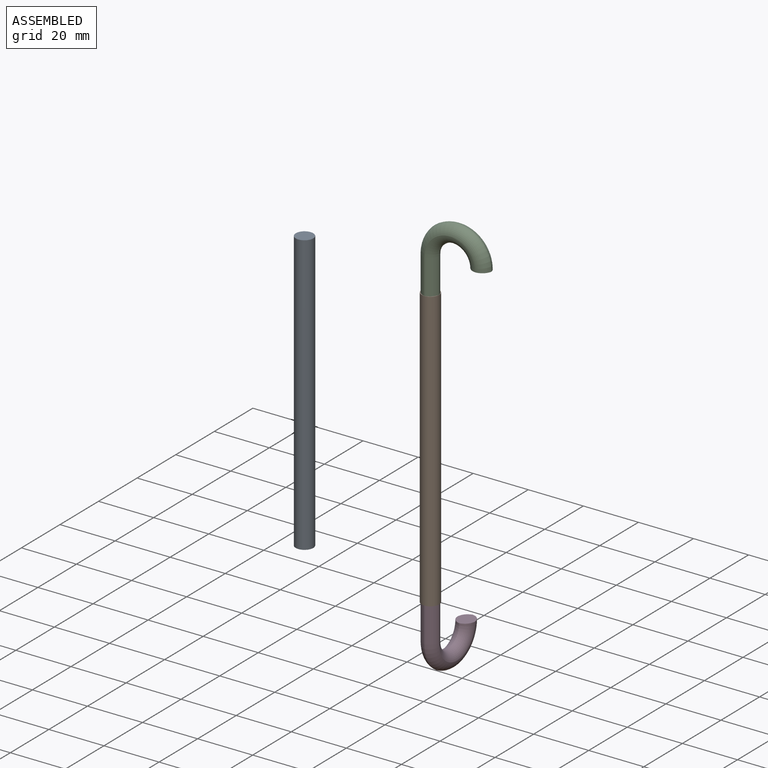
[diagram: assembled view]
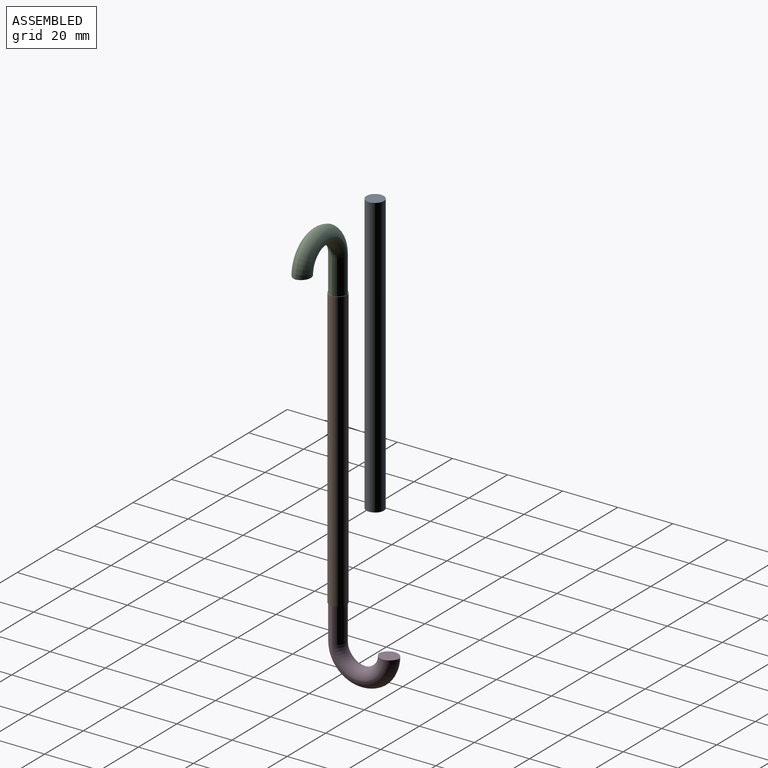
[diagram: assembled view, second angle]
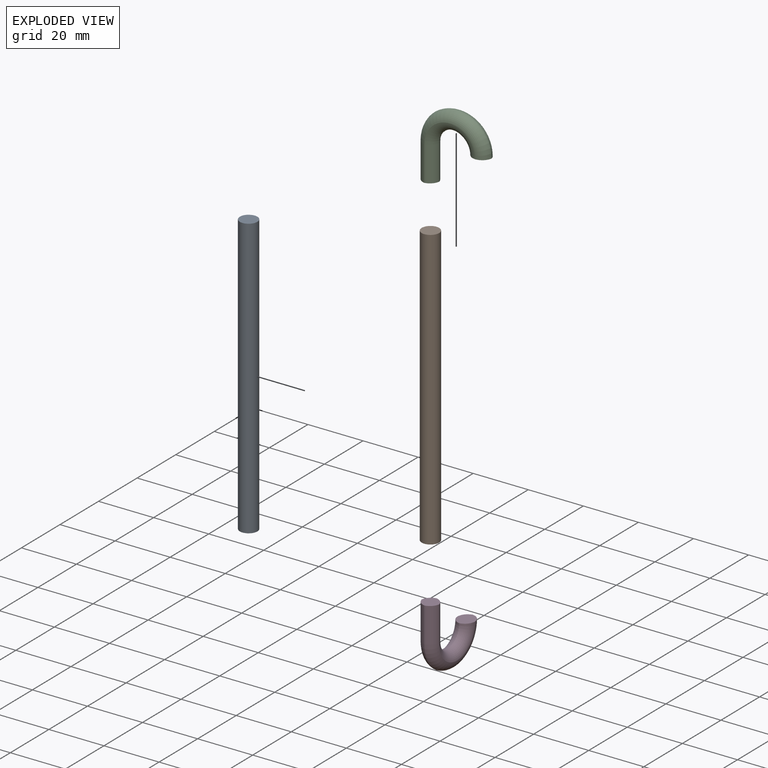
[diagram: exploded view]
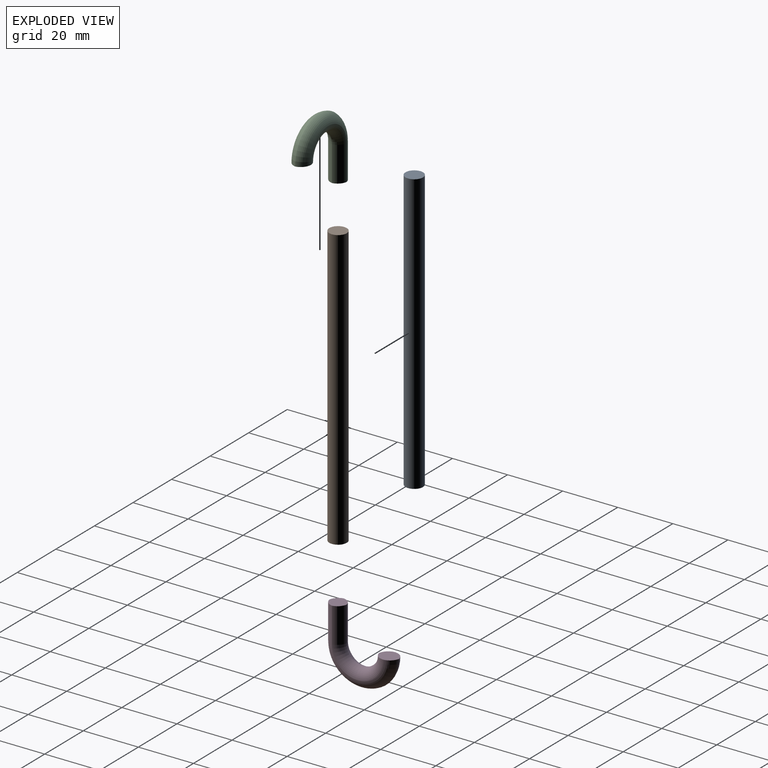
[diagram: exploded view, second angle]
ASSEMBLY  parts=3 mates=2
PART A: 3 faces, bbox 6.4x6.4x101.6 mm
  f0: cylinder r=3.17mm len=101.6mm, axis (0,0,-1), area 2026.8mm2, adj f1,f2
  f1: plane 6.35x6.35mm, normal (0,0,1), area 31.7mm2, adj f0
  f2: plane 6.35x6.35mm, normal (0,0,-1), area 31.7mm2, adj f0
PART B: 10 faces, bbox 27.5x26.4x6.4 mm
  f0: plane 6.24x6.24mm, normal (0,-1,0), area 28mm2, adj f2,f3,f5,f6
  f1: plane 7.23x6.35mm, normal (0,-1,0), area 34.2mm2, adj f4,f7,f8,f9
  f2: cylinder r=3.81mm len=12.7mm, axis (0,1,0), area 59.8mm2, adj f0,f3,f4,f5
  f3: cylinder r=3.81mm len=12.7mm, axis (0,-1,0), area 59.8mm2, adj f0,f2,f6,f7
  f4: torus R=8.89mm, axis (0,0,1), area 176.3mm2, adj f1,f2,f7,f8
  f5: cylinder r=3.81mm len=12.7mm, axis (0,-1,0), area 59.8mm2, adj f0,f2,f6,f8
  f6: cylinder r=3.81mm len=12.7mm, axis (0,1,0), area 59.8mm2, adj f0,f3,f5,f9
  f7: torus R=9.66mm, axis (0,0,1), area 112.7mm2, adj f1,f3,f4,f9
  f8: torus R=8.89mm, axis (0,0,1), area 176.3mm2, adj f1,f4,f5,f9
  f9: torus R=9.66mm, axis (0,0,1), area 112.7mm2, adj f1,f6,f7,f8
PART C: same geometry as B
PLACE A t=(-33.84,14.81,-6.64)mm
PLACE B rot(axis=(1,0,0),90deg) t=(0.78,17.98,128.24)mm
PLACE C rot(axis=(-0.58,-0.58,0.58),120deg) t=(-30.66,49.42,-39.92)mm
MATE fastened C.f0 <-> A.f0  axis (0,0,1) through (-33.84,14.81,-6.64)mm
MATE fastened B.f0 <-> A.f0  axis (0,0,-1) through (-33.84,14.81,94.96)mm
